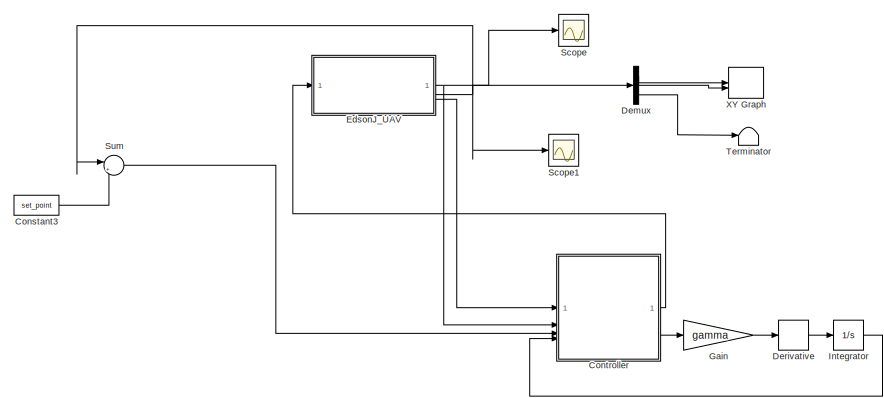
[diagram: root canvas - part 1/3, top right region]
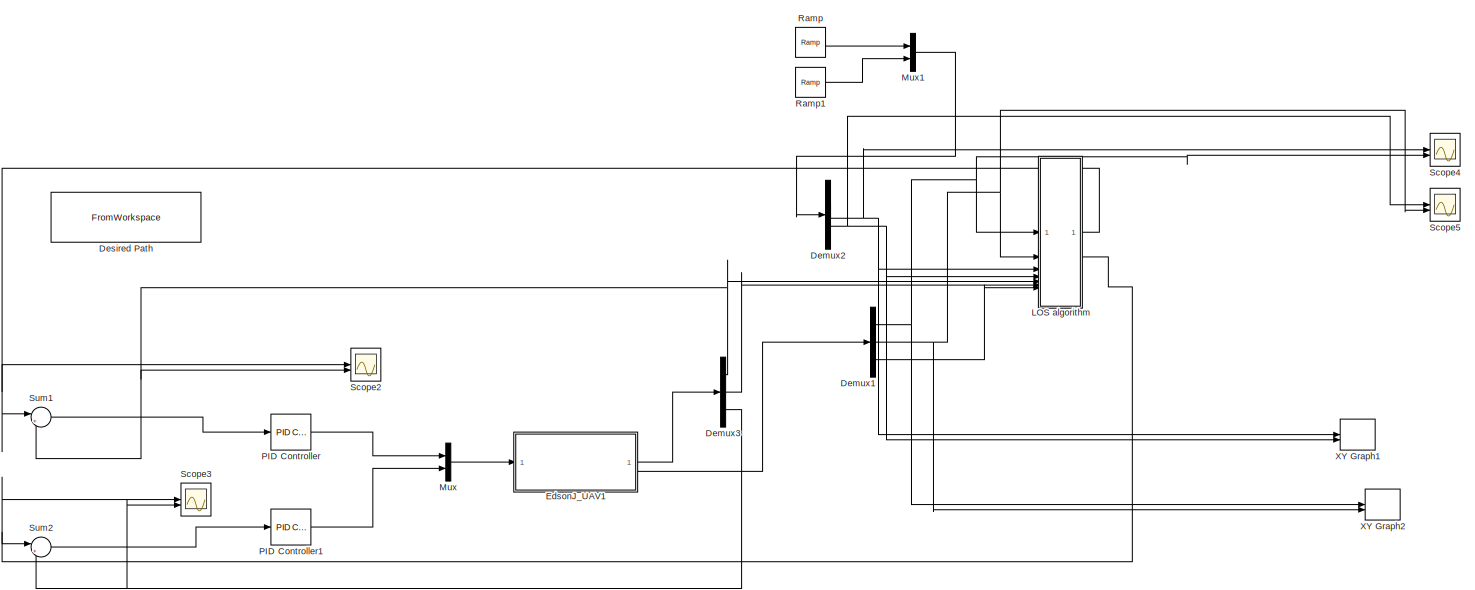
[diagram: root canvas - part 2/3, bottom center region]
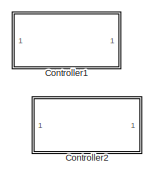
[diagram: root canvas - part 3/3, bottom left region]
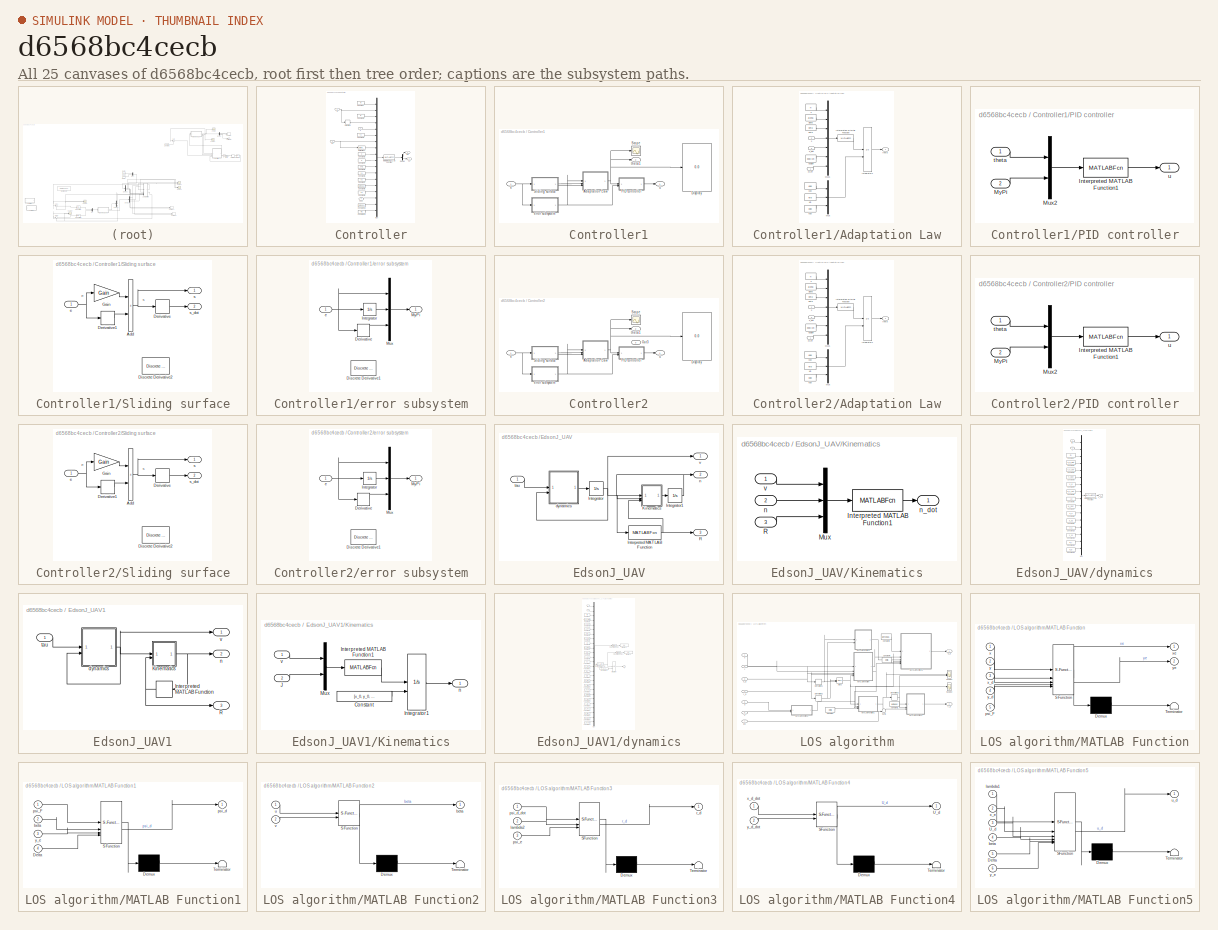
[diagram: thumbnail index - all 25 canvases of the model, root first then tree order]
MODEL slx_d6568bc4cecb
KIND model
CONFIG AbsTol = auto
CONFIG EnableMultiTasking = off
CONFIG FixedStep = 1e-4
CONFIG MaxStep = auto
CONFIG MinStep = auto
CONFIG RelTol = 1e-3
CONFIG SampleTimeConstraint = Unconstrained
CONFIG SolverName = VariableStepAuto
CONFIG StartTime = 0.0
CONFIG StopTime = 80
BLOCK [Constant] Constant3
  Commented = on
  Value = set_point
BLOCK [SubSystem] Controller
  Commented = on
BLOCK [Constant] Controller/Constant
  Value = M
BLOCK [Constant] Controller/Constant1
  Value = c1
BLOCK [Constant] Controller/Constant10
  Value = lambda1
BLOCK [Constant] Controller/Constant11
  Value = mu
BLOCK [Constant] Controller/Constant2
  Value = D
BLOCK [Constant] Controller/Constant3
  Value = p
BLOCK [Constant] Controller/Constant4
  Value = q
BLOCK [Constant] Controller/Constant5
  Value = phi1
BLOCK [Constant] Controller/Constant6
  Value = h1
BLOCK [Constant] Controller/Constant7
  Value = h2
BLOCK [Constant] Controller/Constant8
  Value = lambda2
BLOCK [Constant] Controller/Constant9
  Value = h3
BLOCK [Demux] Controller/Demux
  Outputs = 2
BLOCK [Derivative] Controller/Derivative
BLOCK [Derivative] Controller/Derivative1
BLOCK [Inport] Controller/Fest
  Port = 4
BLOCK [MATLABFcn] Controller/Interpreted MATLAB Function
  MATLABFcn = control_ABFTISMC
BLOCK [Mux] Controller/Mux
  DisplayOption = bar
  Inputs = 18
BLOCK [Inport] Controller/R
BLOCK [Outport] Controller/s2
  Port = 2
BLOCK [Outport] Controller/tau
BLOCK [Inport] Controller/v
  Port = 2
BLOCK [Inport] Controller/z1
  Port = 3
BLOCK [SubSystem] Controller1
  Commented = on
BLOCK [SubSystem] Controller1/Adaptation Law
BLOCK [Integrator] Controller1/Adaptation Law/Integrator1
  InitialCondition = [1.460477259865257e-04,6.548069875818259e-05,0]
  InitialConditionSource = external
BLOCK [MATLABFcn] Controller1/Adaptation Law/Interpreted MATLAB Function
  MATLABFcn = adaptationLaw
BLOCK [Mux] Controller1/Adaptation Law/Mux
  DisplayOption = bar
  Inputs = 3
BLOCK [Mux] Controller1/Adaptation Law/Mux1
  DisplayOption = bar
  Inputs = 7
BLOCK [Constant] Controller1/Adaptation Law/alpha
  Value = alpha
BLOCK [Constant] Controller1/Adaptation Law/beta
  Value = beta
BLOCK [Constant] Controller1/Adaptation Law/epsilon
  Value = epsilon
BLOCK [Constant] Controller1/Adaptation Law/kd0
  Value = kd0
BLOCK [Constant] Controller1/Adaptation Law/ki0
  Value = ki0
BLOCK [Constant] Controller1/Adaptation Law/kp0
  Value = kp0
BLOCK [Inport] Controller1/Adaptation Law/myPi
BLOCK [Constant] Controller1/Adaptation Law/n
  Value = n
BLOCK [Inport] Controller1/Adaptation Law/s
  Port = 2
BLOCK [Inport] Controller1/Adaptation Law/s_dot
  Port = 3
BLOCK [Outport] Controller1/Adaptation Law/theta
BLOCK [Display] Controller1/Display
  Decimation = 1
BLOCK [SubSystem] Controller1/PID controller
BLOCK [MATLABFcn] Controller1/PID controller/Interpreted MATLAB Function1
  MATLABFcn = controlLaw
  OutputDimensions = 1
BLOCK [Mux] Controller1/PID controller/Mux2
  DisplayOption = bar
  Inputs = 2
BLOCK [Inport] Controller1/PID controller/MyPi
  Port = 2
BLOCK [Inport] Controller1/PID controller/theta
BLOCK [Outport] Controller1/PID controller/u
BLOCK [Scope] Controller1/Scope
  Floating = off
  NumInputPorts = 1
  ScopeSpecificationString = Simulink.scopes.TimeScopeBlockCfg('CurrentConfiguration', extmgr.ConfigurationSet(extmgr.Configuration('Core','General UI',true,'DisplayFullSourceName',false,'ShowMainToolbar',true),extmgr.Configuration('Sources','WiredSimulink',true,'DataLogging',false,'DataLoggingVariableName','ScopeData1','DataLoggingLimitDataPoints',false,'DataLoggingMaxPoints','5000','DataLoggingDecimateData',false,'DataLoggi...<+1998ch>
BLOCK [SubSystem] Controller1/Sliding surface
BLOCK [Sum] Controller1/Sliding surface/Add
  IconShape = rectangular
BLOCK [Derivative] Controller1/Sliding surface/Derivative
BLOCK [Derivative] Controller1/Sliding surface/Derivative1
BLOCK [Reference] Controller1/Sliding surface/Discrete Derivative2  REF=simulink/Discrete/Discrete Derivative
  Commented = on
  SourceBlock = simulink/Discrete/Discrete Derivative
  SourceType = Discrete Derivative
BLOCK [Gain] Controller1/Sliding surface/Gain
  Gain = Gain
BLOCK [Inport] Controller1/Sliding surface/e
BLOCK [Outport] Controller1/Sliding surface/s
BLOCK [Outport] Controller1/Sliding surface/s_dot
  Port = 2
BLOCK [Inport] Controller1/e
BLOCK [SubSystem] Controller1/error subsystem
BLOCK [Derivative] Controller1/error subsystem/Derivative
BLOCK [Reference] Controller1/error subsystem/Discrete Derivative1  REF=simulink/Discrete/Discrete Derivative
  Commented = on
  SourceBlock = simulink/Discrete/Discrete Derivative
  SourceType = Discrete Derivative
BLOCK [Integrator] Controller1/error subsystem/Integrator
BLOCK [Mux] Controller1/error subsystem/Mux
  DisplayOption = bar
  Inputs = 3
BLOCK [Outport] Controller1/error subsystem/MyPi
BLOCK [Inport] Controller1/error subsystem/e
BLOCK [Outport] Controller1/theta1
  Port = 2
BLOCK [Outport] Controller1/u
BLOCK [SubSystem] Controller2
  Commented = on
  PortSchema = {"entries":[{"content":{"sides":[{"content":{"connectorIds":["In1"]},"type":"ConnectorPlacement.EquallySpacedRectSide","uuid":"f76ee324-2c0a-46ef-be7a-d74aa6ee62a4"},{"content":{"connectorIds":["Out1","Out2"],"side":"RIGHT"},"type":"ConnectorPlacement.EquallySpacedRectSide","uuid":"2ae83653-956d-4e34-a111-2446cf218777"},{"content":{"side":"TOP"},"type":"ConnectorPlacement.EquallySpacedRectSide","u...<+379ch>
BLOCK [SubSystem] Controller2/Adaptation Law
BLOCK [Integrator] Controller2/Adaptation Law/Integrator1
  InitialCondition = [1.460477259865257e-04,6.548069875818259e-05,0]
  InitialConditionSource = external
BLOCK [MATLABFcn] Controller2/Adaptation Law/Interpreted MATLAB Function
  MATLABFcn = adaptationLaw
BLOCK [Mux] Controller2/Adaptation Law/Mux
  DisplayOption = bar
  Inputs = 3
BLOCK [Mux] Controller2/Adaptation Law/Mux1
  DisplayOption = bar
  Inputs = 7
BLOCK [Constant] Controller2/Adaptation Law/alpha
  Value = alpha
BLOCK [Constant] Controller2/Adaptation Law/beta
  Value = beta
BLOCK [Constant] Controller2/Adaptation Law/epsilon
  Value = epsilon
BLOCK [Constant] Controller2/Adaptation Law/kd0
  Value = kd0
BLOCK [Constant] Controller2/Adaptation Law/ki0
  Value = ki0
BLOCK [Constant] Controller2/Adaptation Law/kp0
  Value = kp0
BLOCK [Inport] Controller2/Adaptation Law/myPi
BLOCK [Constant] Controller2/Adaptation Law/n
  Value = n
BLOCK [Inport] Controller2/Adaptation Law/s
  Port = 2
BLOCK [Inport] Controller2/Adaptation Law/s_dot
  Port = 3
BLOCK [Outport] Controller2/Adaptation Law/theta
BLOCK [Display] Controller2/Display
  Decimation = 1
BLOCK [Outport] Controller2/Out3
  Port = 3
BLOCK [SubSystem] Controller2/PID controller
BLOCK [MATLABFcn] Controller2/PID controller/Interpreted MATLAB Function1
  MATLABFcn = controlLaw
  OutputDimensions = 1
BLOCK [Mux] Controller2/PID controller/Mux2
  DisplayOption = bar
  Inputs = 2
BLOCK [Inport] Controller2/PID controller/MyPi
  Port = 2
BLOCK [Inport] Controller2/PID controller/theta
BLOCK [Outport] Controller2/PID controller/u
BLOCK [Scope] Controller2/Scope
  Floating = off
  NumInputPorts = 1
  ScopeSpecificationString = Simulink.scopes.TimeScopeBlockCfg('CurrentConfiguration', extmgr.ConfigurationSet(extmgr.Configuration('Core','General UI',true,'DisplayFullSourceName',false,'ShowMainToolbar',true),extmgr.Configuration('Sources','WiredSimulink',true,'DataLogging',false,'DataLoggingVariableName','ScopeData1','DataLoggingLimitDataPoints',false,'DataLoggingMaxPoints','5000','DataLoggingDecimateData',false,'DataLoggi...<+1998ch>
BLOCK [SubSystem] Controller2/Sliding surface
BLOCK [Sum] Controller2/Sliding surface/Add
  IconShape = rectangular
BLOCK [Derivative] Controller2/Sliding surface/Derivative
BLOCK [Derivative] Controller2/Sliding surface/Derivative1
BLOCK [Reference] Controller2/Sliding surface/Discrete Derivative2  REF=simulink/Discrete/Discrete Derivative
  Commented = on
  SourceBlock = simulink/Discrete/Discrete Derivative
  SourceType = Discrete Derivative
BLOCK [Gain] Controller2/Sliding surface/Gain
  Gain = Gain
BLOCK [Inport] Controller2/Sliding surface/e
BLOCK [Outport] Controller2/Sliding surface/s
BLOCK [Outport] Controller2/Sliding surface/s_dot
  Port = 2
BLOCK [Inport] Controller2/e
BLOCK [SubSystem] Controller2/error subsystem
BLOCK [Derivative] Controller2/error subsystem/Derivative
BLOCK [Reference] Controller2/error subsystem/Discrete Derivative1  REF=simulink/Discrete/Discrete Derivative
  Commented = on
  SourceBlock = simulink/Discrete/Discrete Derivative
  SourceType = Discrete Derivative
BLOCK [Integrator] Controller2/error subsystem/Integrator
BLOCK [Mux] Controller2/error subsystem/Mux
  DisplayOption = bar
  Inputs = 3
BLOCK [Outport] Controller2/error subsystem/MyPi
BLOCK [Inport] Controller2/error subsystem/e
BLOCK [Outport] Controller2/theta1
  Port = 2
BLOCK [Outport] Controller2/u
BLOCK [Demux] Demux
  Commented = on
  Outputs = 3
BLOCK [Demux] Demux1
  Outputs = 3
BLOCK [Demux] Demux2
  Outputs = 2
BLOCK [Demux] Demux3
  Outputs = 3
BLOCK [Derivative] Derivative
  Commented = on
BLOCK [FromWorkspace] Desired Path
  Commented = on
  VariableName = path
BLOCK [SubSystem] EdsonJ_UAV
  Commented = on
BLOCK [Integrator] EdsonJ_UAV/Integrator
  InitialCondition = [0,0,0]
BLOCK [Integrator] EdsonJ_UAV/Integrator1
  InitialCondition = [0,0,0]
BLOCK [MATLABFcn] EdsonJ_UAV/Interpreted MATLAB Function
  MATLABFcn = J_matrix
BLOCK [SubSystem] EdsonJ_UAV/Kinematics
BLOCK [MATLABFcn] EdsonJ_UAV/Kinematics/Interpreted MATLAB Function1
  MATLABFcn = kinematic
BLOCK [Mux] EdsonJ_UAV/Kinematics/Mux
  DisplayOption = bar
  Inputs = 3
BLOCK [Inport] EdsonJ_UAV/Kinematics/R
  Port = 3
BLOCK [Inport] EdsonJ_UAV/Kinematics/n
  Port = 2
BLOCK [Outport] EdsonJ_UAV/Kinematics/n_dot
BLOCK [Inport] EdsonJ_UAV/Kinematics/v
BLOCK [Outport] EdsonJ_UAV/R
  Port = 3
BLOCK [SubSystem] EdsonJ_UAV/dynamics
BLOCK [Constant] EdsonJ_UAV/dynamics/Constant
  Value = m
BLOCK [Constant] EdsonJ_UAV/dynamics/Constant1
  Value = X_u_dot
BLOCK [Constant] EdsonJ_UAV/dynamics/Constant10
  Value = Y_v
BLOCK [Constant] EdsonJ_UAV/dynamics/Constant11
  Value = Y_vv
BLOCK [Constant] EdsonJ_UAV/dynamics/Constant12
  Value = N_r
BLOCK [Constant] EdsonJ_UAV/dynamics/Constant13
  Value = N_rr
BLOCK [Constant] EdsonJ_UAV/dynamics/Constant2
  Value = Y_v_dot
BLOCK [Constant] EdsonJ_UAV/dynamics/Constant3
  Value = Y_r_dot
BLOCK [Constant] EdsonJ_UAV/dynamics/Constant4
  Value = x_g
BLOCK [Constant] EdsonJ_UAV/dynamics/Constant5
  Value = N_v_dot
BLOCK [Constant] EdsonJ_UAV/dynamics/Constant6
  Value = I_z
BLOCK [Constant] EdsonJ_UAV/dynamics/Constant7
  Value = N_r_dot
BLOCK [Constant] EdsonJ_UAV/dynamics/Constant8
  Value = X_u
BLOCK [Constant] EdsonJ_UAV/dynamics/Constant9
  Value = X_uu
BLOCK [MATLABFcn] EdsonJ_UAV/dynamics/Interpreted MATLAB Function
  MATLABFcn = dinamic
BLOCK [Mux] EdsonJ_UAV/dynamics/Mux
  DisplayOption = bar
  Inputs = 16
BLOCK [Inport] EdsonJ_UAV/dynamics/tao
BLOCK [Inport] EdsonJ_UAV/dynamics/v
  Port = 2
BLOCK [Outport] EdsonJ_UAV/dynamics/v_dot
BLOCK [Outport] EdsonJ_UAV/n
  Port = 2
BLOCK [Inport] EdsonJ_UAV/tau
BLOCK [Outport] EdsonJ_UAV/v
BLOCK [SubSystem] EdsonJ_UAV1
BLOCK [MATLABFcn] EdsonJ_UAV1/Interpreted MATLAB Function
  MATLABFcn = J_matrix
  NameLocation = top
BLOCK [SubSystem] EdsonJ_UAV1/Kinematics
BLOCK [Constant] EdsonJ_UAV1/Kinematics/Constant
  Value = [x_0, y_0, yaw_0]
BLOCK [Integrator] EdsonJ_UAV1/Kinematics/Integrator1
  InitialCondition = [0,0,0]
  InitialConditionSource = external
BLOCK [MATLABFcn] EdsonJ_UAV1/Kinematics/Interpreted MATLAB Function1
  MATLABFcn = kinematic
BLOCK [Inport] EdsonJ_UAV1/Kinematics/J
  Port = 2
BLOCK [Mux] EdsonJ_UAV1/Kinematics/Mux
  DisplayOption = bar
  Inputs = 2
BLOCK [Outport] EdsonJ_UAV1/Kinematics/n
BLOCK [Inport] EdsonJ_UAV1/Kinematics/v
BLOCK [Outport] EdsonJ_UAV1/R
  Port = 3
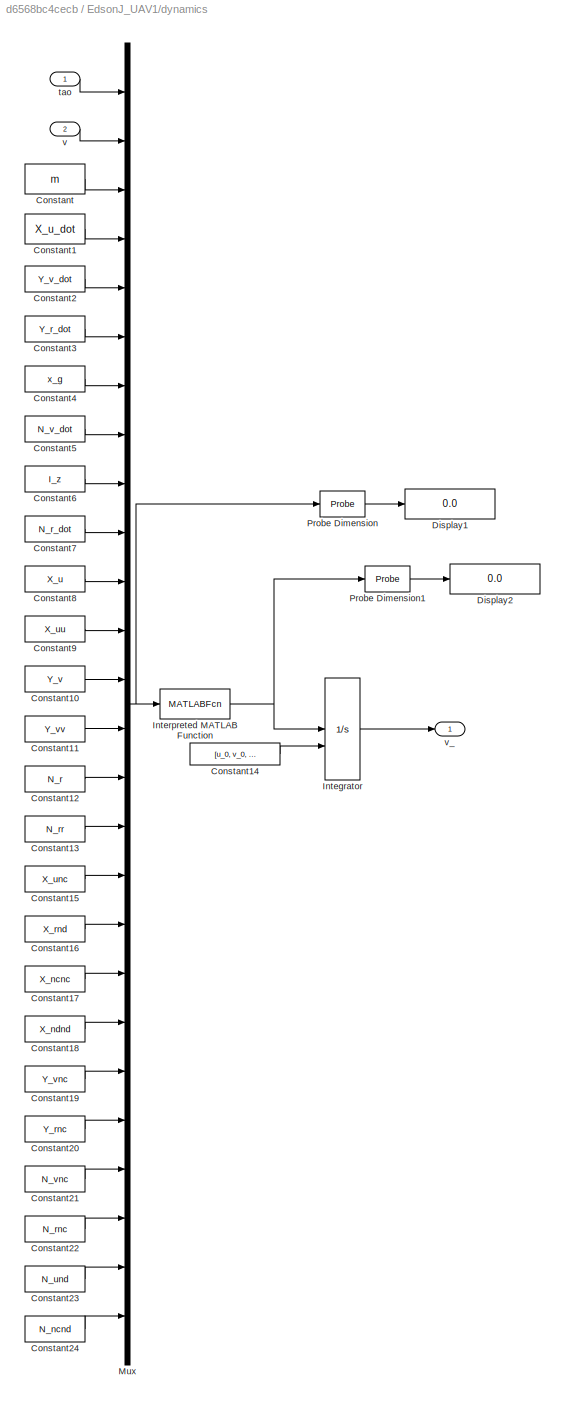
BLOCK [SubSystem] EdsonJ_UAV1/dynamics
BLOCK [Constant] EdsonJ_UAV1/dynamics/Constant
  Value = m
BLOCK [Constant] EdsonJ_UAV1/dynamics/Constant1
  Value = X_u_dot
BLOCK [Constant] EdsonJ_UAV1/dynamics/Constant10
  Value = Y_v
BLOCK [Constant] EdsonJ_UAV1/dynamics/Constant11
  Value = Y_vv
BLOCK [Constant] EdsonJ_UAV1/dynamics/Constant12
  Value = N_r
BLOCK [Constant] EdsonJ_UAV1/dynamics/Constant13
  Value = N_rr
BLOCK [Constant] EdsonJ_UAV1/dynamics/Constant14
  Value = [u_0, v_0, r_0]
BLOCK [Constant] EdsonJ_UAV1/dynamics/Constant15
  Value = X_unc
BLOCK [Constant] EdsonJ_UAV1/dynamics/Constant16
  Value = X_rnd
BLOCK [Constant] EdsonJ_UAV1/dynamics/Constant17
  Value = X_ncnc
BLOCK [Constant] EdsonJ_UAV1/dynamics/Constant18
  Value = X_ndnd
BLOCK [Constant] EdsonJ_UAV1/dynamics/Constant19
  Value = Y_vnc
BLOCK [Constant] EdsonJ_UAV1/dynamics/Constant2
  Value = Y_v_dot
BLOCK [Constant] EdsonJ_UAV1/dynamics/Constant20
  Value = Y_rnc
BLOCK [Constant] EdsonJ_UAV1/dynamics/Constant21
  Value = N_vnc
BLOCK [Constant] EdsonJ_UAV1/dynamics/Constant22
  Value = N_rnc
BLOCK [Constant] EdsonJ_UAV1/dynamics/Constant23
  Value = N_und
BLOCK [Constant] EdsonJ_UAV1/dynamics/Constant24
  Value = N_ncnd
BLOCK [Constant] EdsonJ_UAV1/dynamics/Constant3
  Value = Y_r_dot
BLOCK [Constant] EdsonJ_UAV1/dynamics/Constant4
  Value = x_g
BLOCK [Constant] EdsonJ_UAV1/dynamics/Constant5
  Value = N_v_dot
BLOCK [Constant] EdsonJ_UAV1/dynamics/Constant6
  Value = I_z
BLOCK [Constant] EdsonJ_UAV1/dynamics/Constant7
  Value = N_r_dot
BLOCK [Constant] EdsonJ_UAV1/dynamics/Constant8
  Value = X_u
BLOCK [Constant] EdsonJ_UAV1/dynamics/Constant9
  Value = X_uu
BLOCK [Display] EdsonJ_UAV1/dynamics/Display1
  Decimation = 1
BLOCK [Display] EdsonJ_UAV1/dynamics/Display2
  Decimation = 1
BLOCK [Integrator] EdsonJ_UAV1/dynamics/Integrator
  InitialCondition = [0,0,0]
  InitialConditionSource = external
BLOCK [MATLABFcn] EdsonJ_UAV1/dynamics/Interpreted MATLAB Function
  MATLABFcn = dinamic
BLOCK [Mux] EdsonJ_UAV1/dynamics/Mux
  DisplayOption = bar
  Inputs = 26
BLOCK [Probe] EdsonJ_UAV1/dynamics/Probe Dimension
  ProbeComplexSignal = off
  ProbeSampleTime = off
  ProbeSignalDimensions = on
  ProbeWidth = off
BLOCK [Probe] EdsonJ_UAV1/dynamics/Probe Dimension1
  ProbeComplexSignal = off
  ProbeSampleTime = off
  ProbeSignalDimensions = on
  ProbeWidth = off
BLOCK [Inport] EdsonJ_UAV1/dynamics/tao
BLOCK [Inport] EdsonJ_UAV1/dynamics/v
  Port = 2
BLOCK [Outport] EdsonJ_UAV1/dynamics/v_
BLOCK [Outport] EdsonJ_UAV1/n
  Port = 2
BLOCK [Inport] EdsonJ_UAV1/tau
BLOCK [Outport] EdsonJ_UAV1/v
BLOCK [Gain] Gain
  Commented = on
  Gain = gamma
BLOCK [Integrator] Integrator
  Commented = on
  InitialCondition = [0,0,0]'
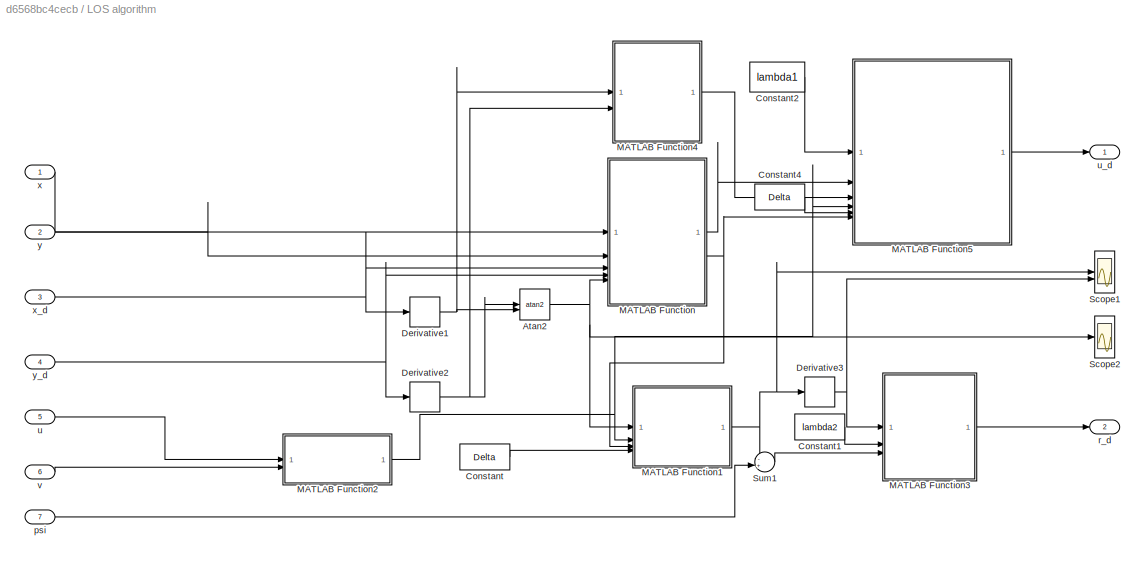
BLOCK [SubSystem] LOS algorithm
BLOCK [Trigonometry] LOS algorithm/Atan2
  Operator = atan2
BLOCK [Constant] LOS algorithm/Constant
  Value = Delta
BLOCK [Constant] LOS algorithm/Constant1
  Value = lambda2
BLOCK [Constant] LOS algorithm/Constant2
  Value = lambda1
BLOCK [Constant] LOS algorithm/Constant4
  Value = Delta
BLOCK [Derivative] LOS algorithm/Derivative1
BLOCK [Derivative] LOS algorithm/Derivative2
BLOCK [Derivative] LOS algorithm/Derivative3
BLOCK [SubSystem] LOS algorithm/MATLAB Function
  ErrorFcn = Stateflow.Translate.translate
  PermitHierarchicalResolution = ExplicitOnly
  SFBlockType = MATLAB Function
  TreatAsAtomicUnit = on
BLOCK [Demux] LOS algorithm/MATLAB Function/ Demux 
  Outputs = 1
BLOCK [S-Function] LOS algorithm/MATLAB Function/ SFunction 
  EnableBusSupport = off
  FunctionName = sf_sfun
  PortCounts = [5 3]
  SFcnIsStateOwnerBlock = off
  SFunctionDeploymentMode = off
  Tag = Stateflow S-Function 2
BLOCK [Terminator] LOS algorithm/MATLAB Function/ Terminator 
BLOCK [Inport] LOS algorithm/MATLAB Function/psi_F
  Port = 5
BLOCK [Inport] LOS algorithm/MATLAB Function/x
BLOCK [Inport] LOS algorithm/MATLAB Function/x_d
  Port = 3
BLOCK [Outport] LOS algorithm/MATLAB Function/xe
BLOCK [Inport] LOS algorithm/MATLAB Function/y
  Port = 2
BLOCK [Inport] LOS algorithm/MATLAB Function/y_d
  Port = 4
BLOCK [Outport] LOS algorithm/MATLAB Function/ye
  Port = 2
BLOCK [SubSystem] LOS algorithm/MATLAB Function1
  ErrorFcn = Stateflow.Translate.translate
  PermitHierarchicalResolution = ExplicitOnly
  SFBlockType = MATLAB Function
  TreatAsAtomicUnit = on
BLOCK [Demux] LOS algorithm/MATLAB Function1/ Demux 
  Outputs = 1
BLOCK [S-Function] LOS algorithm/MATLAB Function1/ SFunction 
  EnableBusSupport = off
  FunctionName = sf_sfun
  PortCounts = [4 2]
  SFcnIsStateOwnerBlock = off
  SFunctionDeploymentMode = off
  Tag = Stateflow S-Function 1
BLOCK [Terminator] LOS algorithm/MATLAB Function1/ Terminator 
BLOCK [Inport] LOS algorithm/MATLAB Function1/Delta
  Port = 4
BLOCK [Inport] LOS algorithm/MATLAB Function1/beta
  Port = 2
BLOCK [Inport] LOS algorithm/MATLAB Function1/psi_F
BLOCK [Outport] LOS algorithm/MATLAB Function1/psi_d
BLOCK [Inport] LOS algorithm/MATLAB Function1/y_e
  Port = 3
BLOCK [SubSystem] LOS algorithm/MATLAB Function2
  ErrorFcn = Stateflow.Translate.translate
  PermitHierarchicalResolution = ExplicitOnly
  SFBlockType = MATLAB Function
  TreatAsAtomicUnit = on
BLOCK [Demux] LOS algorithm/MATLAB Function2/ Demux 
  Outputs = 1
BLOCK [S-Function] LOS algorithm/MATLAB Function2/ SFunction 
  EnableBusSupport = off
  FunctionName = sf_sfun
  PortCounts = [2 2]
  SFcnIsStateOwnerBlock = off
  SFunctionDeploymentMode = off
  Tag = Stateflow S-Function 3
BLOCK [Terminator] LOS algorithm/MATLAB Function2/ Terminator 
BLOCK [Outport] LOS algorithm/MATLAB Function2/beta
BLOCK [Inport] LOS algorithm/MATLAB Function2/u
BLOCK [Inport] LOS algorithm/MATLAB Function2/v
  Port = 2
BLOCK [SubSystem] LOS algorithm/MATLAB Function3
  ErrorFcn = Stateflow.Translate.translate
  PermitHierarchicalResolution = ExplicitOnly
  SFBlockType = MATLAB Function
  TreatAsAtomicUnit = on
BLOCK [Demux] LOS algorithm/MATLAB Function3/ Demux 
  Outputs = 1
BLOCK [S-Function] LOS algorithm/MATLAB Function3/ SFunction 
  EnableBusSupport = off
  FunctionName = sf_sfun
  PortCounts = [3 2]
  SFcnIsStateOwnerBlock = off
  SFunctionDeploymentMode = off
  Tag = Stateflow S-Function 4
BLOCK [Terminator] LOS algorithm/MATLAB Function3/ Terminator 
BLOCK [Inport] LOS algorithm/MATLAB Function3/lambda2
  Port = 2
BLOCK [Inport] LOS algorithm/MATLAB Function3/psi_d_dot
BLOCK [Inport] LOS algorithm/MATLAB Function3/psi_e
  Port = 3
BLOCK [Outport] LOS algorithm/MATLAB Function3/r_d
BLOCK [SubSystem] LOS algorithm/MATLAB Function4
  ErrorFcn = Stateflow.Translate.translate
  PermitHierarchicalResolution = ExplicitOnly
  SFBlockType = MATLAB Function
  TreatAsAtomicUnit = on
BLOCK [Demux] LOS algorithm/MATLAB Function4/ Demux 
  Outputs = 1
BLOCK [S-Function] LOS algorithm/MATLAB Function4/ SFunction 
  EnableBusSupport = off
  FunctionName = sf_sfun
  PortCounts = [2 2]
  SFcnIsStateOwnerBlock = off
  SFunctionDeploymentMode = off
  Tag = Stateflow S-Function 5
BLOCK [Terminator] LOS algorithm/MATLAB Function4/ Terminator 
BLOCK [Outport] LOS algorithm/MATLAB Function4/U_d
BLOCK [Inport] LOS algorithm/MATLAB Function4/x_d_dot
BLOCK [Inport] LOS algorithm/MATLAB Function4/y_d_dot
  Port = 2
BLOCK [SubSystem] LOS algorithm/MATLAB Function5
  ErrorFcn = Stateflow.Translate.translate
  PermitHierarchicalResolution = ExplicitOnly
  SFBlockType = MATLAB Function
  TreatAsAtomicUnit = on
BLOCK [Demux] LOS algorithm/MATLAB Function5/ Demux 
  Outputs = 1
BLOCK [S-Function] LOS algorithm/MATLAB Function5/ SFunction 
  EnableBusSupport = off
  FunctionName = sf_sfun
  PortCounts = [6 2]
  SFcnIsStateOwnerBlock = off
  SFunctionDeploymentMode = off
  Tag = Stateflow S-Function 6
BLOCK [Terminator] LOS algorithm/MATLAB Function5/ Terminator 
BLOCK [Inport] LOS algorithm/MATLAB Function5/Delta
  Port = 5
BLOCK [Inport] LOS algorithm/MATLAB Function5/U_d
  Port = 3
BLOCK [Inport] LOS algorithm/MATLAB Function5/beta
  Port = 4
BLOCK [Inport] LOS algorithm/MATLAB Function5/lambda1
BLOCK [Outport] LOS algorithm/MATLAB Function5/u_d
BLOCK [Inport] LOS algorithm/MATLAB Function5/x_e
  Port = 2
BLOCK [Inport] LOS algorithm/MATLAB Function5/y_e
  Port = 6
BLOCK [Scope] LOS algorithm/Scope1
  Floating = off
  NumInputPorts = 2
  ScopeSpecificationString = Simulink.scopes.TimeScopeBlockCfg('CurrentConfiguration', extmgr.ConfigurationSet(extmgr.Configuration('Core','General UI',true,'DisplayFullSourceName',false,'ShowMainToolbar',true,'FigureColor',[0.129411764705882 0.129411764705882 0.129411764705882]),extmgr.Configuration('Sources','WiredSimulink',true,'DataLogging',false,'DataLoggingVariableName','ScopeData7','DataLoggingLimitDataPoints',false,'D...<+3228ch>
BLOCK [Scope] LOS algorithm/Scope2
  Floating = off
  NumInputPorts = 2
  ScopeSpecificationString = Simulink.scopes.TimeScopeBlockCfg('CurrentConfiguration', extmgr.ConfigurationSet(extmgr.Configuration('Core','General UI',true,'DisplayFullSourceName',false,'ShowMainToolbar',true,'FigureColor',[0.129411764705882 0.129411764705882 0.129411764705882]),extmgr.Configuration('Sources','WiredSimulink',true,'DataLogging',false,'DataLoggingVariableName','ScopeData6','DataLoggingLimitDataPoints',false,'D...<+3188ch>
BLOCK [Sum] LOS algorithm/Sum1
  Inputs = -+|
BLOCK [Inport] LOS algorithm/psi
  Port = 7
BLOCK [Outport] LOS algorithm/r_d
  Port = 2
BLOCK [Inport] LOS algorithm/u
  Port = 5
BLOCK [Outport] LOS algorithm/u_d
BLOCK [Inport] LOS algorithm/v
  Port = 6
BLOCK [Inport] LOS algorithm/x
BLOCK [Inport] LOS algorithm/x_d
  Port = 3
BLOCK [Inport] LOS algorithm/y
  Port = 2
BLOCK [Inport] LOS algorithm/y_d
  Port = 4
BLOCK [Mux] Mux
  DisplayOption = bar
  Inputs = 2
BLOCK [Mux] Mux1
  DisplayOption = bar
  Inputs = 2
BLOCK [Reference] PID Controller  REF=slpidlib/PID Controller
  LibrarySourceBlock = simulink/Continuous/PID Controller
  SourceBlock = slpidlib/PID Controller
  SourceType = PID 1dof
BLOCK [Reference] PID Controller1  REF=slpidlib/PID Controller
  LibrarySourceBlock = simulink/Continuous/PID Controller
  SourceBlock = slpidlib/PID Controller
  SourceType = PID 1dof
BLOCK [Reference] Ramp  REF=simulink/Sources/Ramp
  SourceBlock = simulink/Sources/Ramp
  SourceType = Ramp
BLOCK [Reference] Ramp1  REF=simulink/Sources/Ramp
  SourceBlock = simulink/Sources/Ramp
  SourceType = Ramp
BLOCK [Scope] Scope
  Commented = on
  Floating = off
  NumInputPorts = 1
  ScopeSpecificationString = Simulink.scopes.TimeScopeBlockCfg('CurrentConfiguration', extmgr.ConfigurationSet(extmgr.Configuration('Core','General UI',true,'DisplayFullSourceName',false,'ShowMainToolbar',true,'FigureColor',[0.129411764705882 0.129411764705882 0.129411764705882]),extmgr.Configuration('Sources','WiredSimulink',true,'DataLogging',false,'DataLoggingVariableName','ScopeData','DataLoggingLimitDataPoints',false,'Da...<+2566ch>
BLOCK [Scope] Scope1
  Commented = on
  Floating = off
  NumInputPorts = 1
  ScopeSpecificationString = Simulink.scopes.TimeScopeBlockCfg('CurrentConfiguration', extmgr.ConfigurationSet(extmgr.Configuration('Core','General UI',true,'DisplayFullSourceName',false,'ShowMainToolbar',true,'FigureColor',[0.129411764705882 0.129411764705882 0.129411764705882]),extmgr.Configuration('Sources','WiredSimulink',true,'DataLogging',false,'DataLoggingVariableName','ScopeData1','DataLoggingLimitDataPoints',false,'D...<+2567ch>
BLOCK [Scope] Scope2
  Floating = off
  NumInputPorts = 2
  ScopeSpecificationString = Simulink.scopes.TimeScopeBlockCfg('CurrentConfiguration', extmgr.ConfigurationSet(extmgr.Configuration('Core','General UI',true,'DisplayFullSourceName',false,'ShowMainToolbar',true,'FigureColor',[0.129411764705882 0.129411764705882 0.129411764705882]),extmgr.Configuration('Sources','WiredSimulink',true,'DataLogging',false,'DataLoggingVariableName','ScopeData2','DataLoggingLimitDataPoints',false,'D...<+2385ch>
BLOCK [Scope] Scope3
  Floating = off
  NumInputPorts = 2
  ScopeSpecificationString = Simulink.scopes.TimeScopeBlockCfg('CurrentConfiguration', extmgr.ConfigurationSet(extmgr.Configuration('Core','General UI',true,'DisplayFullSourceName',false,'ShowMainToolbar',true,'FigureColor',[0.129411764705882 0.129411764705882 0.129411764705882]),extmgr.Configuration('Sources','WiredSimulink',true,'DataLogging',false,'DataLoggingVariableName','ScopeData3','DataLoggingLimitDataPoints',false,'D...<+2374ch>
BLOCK [Scope] Scope4
  Floating = off
  NumInputPorts = 2
  ScopeSpecificationString = Simulink.scopes.TimeScopeBlockCfg('CurrentConfiguration', extmgr.ConfigurationSet(extmgr.Configuration('Core','General UI',true,'DisplayFullSourceName',false,'ShowMainToolbar',true,'FigureColor',[0.129411764705882 0.129411764705882 0.129411764705882]),extmgr.Configuration('Sources','WiredSimulink',true,'DataLogging',false,'DataLoggingVariableName','ScopeData4','DataLoggingLimitDataPoints',false,'D...<+2404ch>
BLOCK [Scope] Scope5
  Floating = off
  NumInputPorts = 2
  ScopeSpecificationString = Simulink.scopes.TimeScopeBlockCfg('CurrentConfiguration', extmgr.ConfigurationSet(extmgr.Configuration('Core','General UI',true,'DisplayFullSourceName',false,'ShowMainToolbar',true,'FigureColor',[0.129411764705882 0.129411764705882 0.129411764705882]),extmgr.Configuration('Sources','WiredSimulink',true,'DataLogging',false,'DataLoggingVariableName','ScopeData5','DataLoggingLimitDataPoints',false,'D...<+2408ch>
BLOCK [Sum] Sum
  Commented = on
  Inputs = |+-
BLOCK [Sum] Sum1
  Inputs = |+-
BLOCK [Sum] Sum2
  Inputs = |+-
BLOCK [Terminator] Terminator
  Commented = on
BLOCK [Record] XY Graph
  Commented = on
  CompatibilityTag = XY
  FileSettingsInternal = {"entries":[{"content":{"excelSettings":{"content":{},"type":"Streamout.ExcelSettings"},"parquetSettings":{"content":{},"type":"Streamout.ParquetSettings"}},"type":"Streamout.FileSettingStorage","uuid":""}],"packageUris":["http:\/\/schema.mathworks.com\/mf0\/streamout_blocks\/R2020a"],"version":"1.0"}  <repeated x3 — deduplicated; at blocks: XY Graph, XY Graph1, XY Graph2>
  Layout = [1 1]
  SignalsInternal = {"entries":[{"content":{"signals":[{"content":{"blockPath":[],"dimensions":[1],"domain":"","lineColor":"#a2142f","plots":[ 1 ],"port":1,"signalID":1,"signalName":"Demux:1"},"type":"RecordBlkView.Signal","uuid":""},{"content":{"blockPath":[],"dimensions":[1],"domain":"","lineColor":"#139fff","plots":[ 1 ],"port":2,"signalID":2,"signalName":"Demux:2"},"type":"RecordBlkView.Signal","uuid":""}]},"type...<+138ch>
  VisualizationBindings = {"xyplotplugin":{"info":[{"series":[{"bindingParametersList":[{"parameter":"X-Axis","signalID":1,"signalName":"Demux:1"},{"parameter":"Y-Axis","signalID":2,"signalName":"Demux:2"}],"seriesID":0}],"subplotID":1}]}}
BLOCK [Record] XY Graph1
  CompatibilityTag = XY
  Layout = [1 1]
  SignalsInternal = {"entries":[{"content":{"signals":[{"content":{"blockPath":[],"dimensions":[1],"domain":"","lineColor":"#a2142f","plots":[ 1 ],"port":1,"signalID":1,"signalName":"Demux2:1"},"type":"RecordBlkView.Signal","uuid":""},{"content":{"blockPath":[],"dimensions":[1],"domain":"","lineColor":"#139fff","plots":[ 1 ],"port":2,"signalID":2,"signalName":"Demux2:2"},"type":"RecordBlkView.Signal","uuid":""}]},"ty...<+140ch>
  VisualizationBindings = {"xyplotplugin":{"info":[{"series":[{"bindingParametersList":[{"parameter":"X-Axis","signalID":1,"signalName":"Demux2:1"},{"parameter":"Y-Axis","signalID":2,"signalName":"Demux2:2"}],"seriesID":0}],"subplotID":1}]}}
BLOCK [Record] XY Graph2
  CompatibilityTag = XY
  Layout = [1 1]
  SignalsInternal = {"entries":[{"content":{"signals":[{"content":{"blockPath":[],"dimensions":[1],"domain":"","lineColor":"#a2142f","plots":[ 1 ],"port":1,"signalID":1,"signalName":"Demux1:1"},"type":"RecordBlkView.Signal","uuid":""},{"content":{"blockPath":[],"dimensions":[1],"domain":"","lineColor":"#139fff","plots":[ 1 ],"port":2,"signalID":2,"signalName":"Demux1:2"},"type":"RecordBlkView.Signal","uuid":""}]},"ty...<+140ch>
  VisualizationBindings = {"xyplotplugin":{"info":[{"series":[{"bindingParametersList":[{"parameter":"X-Axis","signalID":1,"signalName":"Demux1:1"},{"parameter":"Y-Axis","signalID":2,"signalName":"Demux1:2"}],"seriesID":0}],"subplotID":1}]}}
ANNOTATION Controller1/Sliding surface: e
ANNOTATION Controller1/Sliding surface: s
ANNOTATION Controller2/Sliding surface: e
ANNOTATION Controller2/Sliding surface: s
LINE Constant3:1 -> Sum:2
LINE Controller/Constant10:1 -> Controller/Mux:17
LINE Controller/Constant11:1 -> Controller/Mux:18
LINE Controller/Constant1:1 -> Controller/Mux:6
LINE Controller/Constant2:1 -> Controller/Mux:3
LINE Controller/Constant3:1 -> Controller/Mux:9
LINE Controller/Constant4:1 -> Controller/Mux:10
LINE Controller/Constant5:1 -> Controller/Mux:11
LINE Controller/Constant6:1 -> Controller/Mux:12
LINE Controller/Constant7:1 -> Controller/Mux:13
LINE Controller/Constant8:1 -> Controller/Mux:14
LINE Controller/Constant9:1 -> Controller/Mux:15
LINE Controller/Constant:1 -> Controller/Mux:1
LINE Controller/Demux:1 -> Controller/tau:1
LINE Controller/Demux:2 -> Controller/s2:1
LINE Controller/Derivative1:1 -> Controller/Mux:8
LINE Controller/Derivative:1 -> Controller/Mux:4
LINE Controller/Fest:1 -> Controller/Mux:16
LINE Controller/Interpreted MATLAB Function:1 -> Controller/Demux:1
LINE Controller/Mux:1 -> Controller/Interpreted MATLAB Function:1
NET Controller/R:1 -> Controller/Derivative:1, Controller/Mux:2
LINE Controller/v:1 -> Controller/Mux:5
NET Controller/z1:1 -> Controller/Derivative1:1, Controller/Mux:7
LINE Controller1/Adaptation Law/Integrator1:1 -> Controller1/Adaptation Law/theta:1
LINE Controller1/Adaptation Law/Interpreted MATLAB Function:1 -> Controller1/Adaptation Law/Integrator1:1
LINE Controller1/Adaptation Law/Mux1:1 -> Controller1/Adaptation Law/Interpreted MATLAB Function:1
LINE Controller1/Adaptation Law/Mux:1 -> Controller1/Adaptation Law/Integrator1:2
LINE Controller1/Adaptation Law/alpha:1 -> Controller1/Adaptation Law/Mux1:2
LINE Controller1/Adaptation Law/beta:1 -> Controller1/Adaptation Law/Mux1:3
LINE Controller1/Adaptation Law/epsilon:1 -> Controller1/Adaptation Law/Mux1:6
LINE Controller1/Adaptation Law/kd0:1 -> Controller1/Adaptation Law/Mux:3
LINE Controller1/Adaptation Law/ki0:1 -> Controller1/Adaptation Law/Mux:2
LINE Controller1/Adaptation Law/kp0:1 -> Controller1/Adaptation Law/Mux:1
LINE Controller1/Adaptation Law/myPi:1 -> Controller1/Adaptation Law/Mux1:7
LINE Controller1/Adaptation Law/n:1 -> Controller1/Adaptation Law/Mux1:1
LINE Controller1/Adaptation Law/s:1 -> Controller1/Adaptation Law/Mux1:4
LINE Controller1/Adaptation Law/s_dot:1 -> Controller1/Adaptation Law/Mux1:5
NET Controller1/Adaptation Law:1 -> Controller1/Display:1, Controller1/PID controller:1, Controller1/Scope:1, Controller1/theta1:1
LINE Controller1/PID controller/Interpreted MATLAB Function1:1 -> Controller1/PID controller/u:1
LINE Controller1/PID controller/Mux2:1 -> Controller1/PID controller/Interpreted MATLAB Function1:1
LINE Controller1/PID controller/MyPi:1 -> Controller1/PID controller/Mux2:2
LINE Controller1/PID controller/theta:1 -> Controller1/PID controller/Mux2:1
LINE Controller1/PID controller:1 -> Controller1/u:1
NET Controller1/Sliding surface/Add:1 -> Controller1/Sliding surface/Derivative:1, Controller1/Sliding surface/s:1
LINE Controller1/Sliding surface/Derivative1:1 -> Controller1/Sliding surface/Add:2
LINE Controller1/Sliding surface/Derivative:1 -> Controller1/Sliding surface/s_dot:1
LINE Controller1/Sliding surface/Gain:1 -> Controller1/Sliding surface/Add:1
NET Controller1/Sliding surface/e:1 -> Controller1/Sliding surface/Derivative1:1, Controller1/Sliding surface/Gain:1
LINE Controller1/Sliding surface:1 -> Controller1/Adaptation Law:2
LINE Controller1/Sliding surface:2 -> Controller1/Adaptation Law:3
NET Controller1/e:1 -> Controller1/Sliding surface:1, Controller1/error subsystem:1
LINE Controller1/error subsystem/Derivative:1 -> Controller1/error subsystem/Mux:3
LINE Controller1/error subsystem/Integrator:1 -> Controller1/error subsystem/Mux:2
LINE Controller1/error subsystem/Mux:1 -> Controller1/error subsystem/MyPi:1
NET Controller1/error subsystem/e:1 -> Controller1/error subsystem/Derivative:1, Controller1/error subsystem/Integrator:1, Controller1/error subsystem/Mux:1
NET Controller1/error subsystem:1 -> Controller1/Adaptation Law:1, Controller1/PID controller:2
LINE Controller2/Adaptation Law/Integrator1:1 -> Controller2/Adaptation Law/theta:1
LINE Controller2/Adaptation Law/Interpreted MATLAB Function:1 -> Controller2/Adaptation Law/Integrator1:1
LINE Controller2/Adaptation Law/Mux1:1 -> Controller2/Adaptation Law/Interpreted MATLAB Function:1
LINE Controller2/Adaptation Law/Mux:1 -> Controller2/Adaptation Law/Integrator1:2
LINE Controller2/Adaptation Law/alpha:1 -> Controller2/Adaptation Law/Mux1:2
LINE Controller2/Adaptation Law/beta:1 -> Controller2/Adaptation Law/Mux1:3
LINE Controller2/Adaptation Law/epsilon:1 -> Controller2/Adaptation Law/Mux1:6
LINE Controller2/Adaptation Law/kd0:1 -> Controller2/Adaptation Law/Mux:3
LINE Controller2/Adaptation Law/ki0:1 -> Controller2/Adaptation Law/Mux:2
LINE Controller2/Adaptation Law/kp0:1 -> Controller2/Adaptation Law/Mux:1
LINE Controller2/Adaptation Law/myPi:1 -> Controller2/Adaptation Law/Mux1:7
LINE Controller2/Adaptation Law/n:1 -> Controller2/Adaptation Law/Mux1:1
LINE Controller2/Adaptation Law/s:1 -> Controller2/Adaptation Law/Mux1:4
LINE Controller2/Adaptation Law/s_dot:1 -> Controller2/Adaptation Law/Mux1:5
NET Controller2/Adaptation Law:1 -> Controller2/Display:1, Controller2/PID controller:1, Controller2/Scope:1, Controller2/theta1:1
LINE Controller2/PID controller/Interpreted MATLAB Function1:1 -> Controller2/PID controller/u:1
LINE Controller2/PID controller/Mux2:1 -> Controller2/PID controller/Interpreted MATLAB Function1:1
LINE Controller2/PID controller/MyPi:1 -> Controller2/PID controller/Mux2:2
LINE Controller2/PID controller/theta:1 -> Controller2/PID controller/Mux2:1
LINE Controller2/PID controller:1 -> Controller2/u:1
NET Controller2/Sliding surface/Add:1 -> Controller2/Sliding surface/Derivative:1, Controller2/Sliding surface/s:1
LINE Controller2/Sliding surface/Derivative1:1 -> Controller2/Sliding surface/Add:2
LINE Controller2/Sliding surface/Derivative:1 -> Controller2/Sliding surface/s_dot:1
LINE Controller2/Sliding surface/Gain:1 -> Controller2/Sliding surface/Add:1
NET Controller2/Sliding surface/e:1 -> Controller2/Sliding surface/Derivative1:1, Controller2/Sliding surface/Gain:1
LINE Controller2/Sliding surface:1 -> Controller2/Adaptation Law:2
LINE Controller2/Sliding surface:2 -> Controller2/Adaptation Law:3
NET Controller2/e:1 -> Controller2/Sliding surface:1, Controller2/error subsystem:1
LINE Controller2/error subsystem/Derivative:1 -> Controller2/error subsystem/Mux:3
LINE Controller2/error subsystem/Integrator:1 -> Controller2/error subsystem/Mux:2
LINE Controller2/error subsystem/Mux:1 -> Controller2/error subsystem/MyPi:1
NET Controller2/error subsystem/e:1 -> Controller2/error subsystem/Derivative:1, Controller2/error subsystem/Integrator:1, Controller2/error subsystem/Mux:1
NET Controller2/error subsystem:1 -> Controller2/Adaptation Law:1, Controller2/PID controller:2
LINE Controller:1 -> EdsonJ_UAV:1
LINE Controller:2 -> Gain:1
NET Demux1:1 -> LOS algorithm:1, Scope4:2, XY Graph2:1
NET Demux1:2 -> LOS algorithm:2, Scope5:2, XY Graph2:2
LINE Demux1:3 -> LOS algorithm:7
NET Demux2:1 -> LOS algorithm:3, Scope4:1, XY Graph1:1
NET Demux2:2 -> LOS algorithm:4, Scope5:1, XY Graph1:2
NET Demux3:1 -> LOS algorithm:5, Scope2:2, Sum1:2
LINE Demux3:2 -> LOS algorithm:6
NET Demux3:3 -> Scope3:2, Sum2:2
LINE Demux:1 -> XY Graph:1
LINE Demux:2 -> XY Graph:2
LINE Demux:3 -> Terminator:1
LINE Derivative:1 -> Integrator:1
NET EdsonJ_UAV/Integrator1:1 -> EdsonJ_UAV/Interpreted MATLAB Function:1, EdsonJ_UAV/Kinematics:2, EdsonJ_UAV/n:1
NET EdsonJ_UAV/Integrator:1 -> EdsonJ_UAV/Kinematics:1, EdsonJ_UAV/dynamics:2, EdsonJ_UAV/v:1
NET EdsonJ_UAV/Interpreted MATLAB Function:1 -> EdsonJ_UAV/Kinematics:3, EdsonJ_UAV/R:1
LINE EdsonJ_UAV/Kinematics/Interpreted MATLAB Function1:1 -> EdsonJ_UAV/Kinematics/n_dot:1
LINE EdsonJ_UAV/Kinematics/Mux:1 -> EdsonJ_UAV/Kinematics/Interpreted MATLAB Function1:1
LINE EdsonJ_UAV/Kinematics/R:1 -> EdsonJ_UAV/Kinematics/Mux:3
LINE EdsonJ_UAV/Kinematics/n:1 -> EdsonJ_UAV/Kinematics/Mux:2
LINE EdsonJ_UAV/Kinematics/v:1 -> EdsonJ_UAV/Kinematics/Mux:1
LINE EdsonJ_UAV/Kinematics:1 -> EdsonJ_UAV/Integrator1:1
LINE EdsonJ_UAV/dynamics/Constant10:1 -> EdsonJ_UAV/dynamics/Mux:13
LINE EdsonJ_UAV/dynamics/Constant11:1 -> EdsonJ_UAV/dynamics/Mux:14
LINE EdsonJ_UAV/dynamics/Constant12:1 -> EdsonJ_UAV/dynamics/Mux:15
LINE EdsonJ_UAV/dynamics/Constant13:1 -> EdsonJ_UAV/dynamics/Mux:16
LINE EdsonJ_UAV/dynamics/Constant1:1 -> EdsonJ_UAV/dynamics/Mux:4
LINE EdsonJ_UAV/dynamics/Constant2:1 -> EdsonJ_UAV/dynamics/Mux:5
LINE EdsonJ_UAV/dynamics/Constant3:1 -> EdsonJ_UAV/dynamics/Mux:6
LINE EdsonJ_UAV/dynamics/Constant4:1 -> EdsonJ_UAV/dynamics/Mux:7
LINE EdsonJ_UAV/dynamics/Constant5:1 -> EdsonJ_UAV/dynamics/Mux:8
LINE EdsonJ_UAV/dynamics/Constant6:1 -> EdsonJ_UAV/dynamics/Mux:9
LINE EdsonJ_UAV/dynamics/Constant7:1 -> EdsonJ_UAV/dynamics/Mux:10
LINE EdsonJ_UAV/dynamics/Constant8:1 -> EdsonJ_UAV/dynamics/Mux:11
LINE EdsonJ_UAV/dynamics/Constant9:1 -> EdsonJ_UAV/dynamics/Mux:12
LINE EdsonJ_UAV/dynamics/Constant:1 -> EdsonJ_UAV/dynamics/Mux:3
LINE EdsonJ_UAV/dynamics/Interpreted MATLAB Function:1 -> EdsonJ_UAV/dynamics/v_dot:1
LINE EdsonJ_UAV/dynamics/Mux:1 -> EdsonJ_UAV/dynamics/Interpreted MATLAB Function:1
LINE EdsonJ_UAV/dynamics/tao:1 -> EdsonJ_UAV/dynamics/Mux:1
LINE EdsonJ_UAV/dynamics/v:1 -> EdsonJ_UAV/dynamics/Mux:2
LINE EdsonJ_UAV/dynamics:1 -> EdsonJ_UAV/Integrator:1
LINE EdsonJ_UAV/tau:1 -> EdsonJ_UAV/dynamics:1
NET EdsonJ_UAV1/Interpreted MATLAB Function:1 -> EdsonJ_UAV1/Kinematics:2, EdsonJ_UAV1/R:1
LINE EdsonJ_UAV1/Kinematics/Constant:1 -> EdsonJ_UAV1/Kinematics/Integrator1:2
LINE EdsonJ_UAV1/Kinematics/Integrator1:1 -> EdsonJ_UAV1/Kinematics/n:1
LINE EdsonJ_UAV1/Kinematics/Interpreted MATLAB Function1:1 -> EdsonJ_UAV1/Kinematics/Integrator1:1
LINE EdsonJ_UAV1/Kinematics/J:1 -> EdsonJ_UAV1/Kinematics/Mux:2
LINE EdsonJ_UAV1/Kinematics/Mux:1 -> EdsonJ_UAV1/Kinematics/Interpreted MATLAB Function1:1
LINE EdsonJ_UAV1/Kinematics/v:1 -> EdsonJ_UAV1/Kinematics/Mux:1
NET EdsonJ_UAV1/Kinematics:1 -> EdsonJ_UAV1/Interpreted MATLAB Function:1, EdsonJ_UAV1/n:1
LINE EdsonJ_UAV1/dynamics/Constant10:1 -> EdsonJ_UAV1/dynamics/Mux:13
LINE EdsonJ_UAV1/dynamics/Constant11:1 -> EdsonJ_UAV1/dynamics/Mux:14
LINE EdsonJ_UAV1/dynamics/Constant12:1 -> EdsonJ_UAV1/dynamics/Mux:15
LINE EdsonJ_UAV1/dynamics/Constant13:1 -> EdsonJ_UAV1/dynamics/Mux:16
LINE EdsonJ_UAV1/dynamics/Constant14:1 -> EdsonJ_UAV1/dynamics/Integrator:2
LINE EdsonJ_UAV1/dynamics/Constant15:1 -> EdsonJ_UAV1/dynamics/Mux:17
LINE EdsonJ_UAV1/dynamics/Constant16:1 -> EdsonJ_UAV1/dynamics/Mux:18
LINE EdsonJ_UAV1/dynamics/Constant17:1 -> EdsonJ_UAV1/dynamics/Mux:19
LINE EdsonJ_UAV1/dynamics/Constant18:1 -> EdsonJ_UAV1/dynamics/Mux:20
LINE EdsonJ_UAV1/dynamics/Constant19:1 -> EdsonJ_UAV1/dynamics/Mux:21
LINE EdsonJ_UAV1/dynamics/Constant1:1 -> EdsonJ_UAV1/dynamics/Mux:4
LINE EdsonJ_UAV1/dynamics/Constant20:1 -> EdsonJ_UAV1/dynamics/Mux:22
LINE EdsonJ_UAV1/dynamics/Constant21:1 -> EdsonJ_UAV1/dynamics/Mux:23
LINE EdsonJ_UAV1/dynamics/Constant22:1 -> EdsonJ_UAV1/dynamics/Mux:24
LINE EdsonJ_UAV1/dynamics/Constant23:1 -> EdsonJ_UAV1/dynamics/Mux:25
LINE EdsonJ_UAV1/dynamics/Constant24:1 -> EdsonJ_UAV1/dynamics/Mux:26
LINE EdsonJ_UAV1/dynamics/Constant2:1 -> EdsonJ_UAV1/dynamics/Mux:5
LINE EdsonJ_UAV1/dynamics/Constant3:1 -> EdsonJ_UAV1/dynamics/Mux:6
LINE EdsonJ_UAV1/dynamics/Constant4:1 -> EdsonJ_UAV1/dynamics/Mux:7
LINE EdsonJ_UAV1/dynamics/Constant5:1 -> EdsonJ_UAV1/dynamics/Mux:8
LINE EdsonJ_UAV1/dynamics/Constant6:1 -> EdsonJ_UAV1/dynamics/Mux:9
LINE EdsonJ_UAV1/dynamics/Constant7:1 -> EdsonJ_UAV1/dynamics/Mux:10
LINE EdsonJ_UAV1/dynamics/Constant8:1 -> EdsonJ_UAV1/dynamics/Mux:11
LINE EdsonJ_UAV1/dynamics/Constant9:1 -> EdsonJ_UAV1/dynamics/Mux:12
LINE EdsonJ_UAV1/dynamics/Constant:1 -> EdsonJ_UAV1/dynamics/Mux:3
LINE EdsonJ_UAV1/dynamics/Integrator:1 -> EdsonJ_UAV1/dynamics/v_:1
NET EdsonJ_UAV1/dynamics/Interpreted MATLAB Function:1 -> EdsonJ_UAV1/dynamics/Integrator:1, EdsonJ_UAV1/dynamics/Probe Dimension1:1
NET EdsonJ_UAV1/dynamics/Mux:1 -> EdsonJ_UAV1/dynamics/Interpreted MATLAB Function:1, EdsonJ_UAV1/dynamics/Probe Dimension:1
LINE EdsonJ_UAV1/dynamics/Probe Dimension1:1 -> EdsonJ_UAV1/dynamics/Display2:1
LINE EdsonJ_UAV1/dynamics/Probe Dimension:1 -> EdsonJ_UAV1/dynamics/Display1:1
LINE EdsonJ_UAV1/dynamics/tao:1 -> EdsonJ_UAV1/dynamics/Mux:1
LINE EdsonJ_UAV1/dynamics/v:1 -> EdsonJ_UAV1/dynamics/Mux:2
NET EdsonJ_UAV1/dynamics:1 -> EdsonJ_UAV1/Kinematics:1, EdsonJ_UAV1/dynamics:2, EdsonJ_UAV1/v:1
LINE EdsonJ_UAV1/tau:1 -> EdsonJ_UAV1/dynamics:1
LINE EdsonJ_UAV1:1 -> Demux3:1
LINE EdsonJ_UAV1:2 -> Demux1:1
NET EdsonJ_UAV:1 -> Controller:2, Scope:1
NET EdsonJ_UAV:2 -> Demux:1, Scope1:1, Sum:1
LINE EdsonJ_UAV:3 -> Controller:1
LINE Gain:1 -> Derivative:1
LINE Integrator:1 -> Controller:4
NET LOS algorithm/Atan2:1 -> LOS algorithm/MATLAB Function1:1, LOS algorithm/MATLAB Function:5, LOS algorithm/Scope2:1
LINE LOS algorithm/Constant1:1 -> LOS algorithm/MATLAB Function3:2
LINE LOS algorithm/Constant2:1 -> LOS algorithm/MATLAB Function5:1
LINE LOS algorithm/Constant4:1 -> LOS algorithm/MATLAB Function5:5
LINE LOS algorithm/Constant:1 -> LOS algorithm/MATLAB Function1:4
NET LOS algorithm/Derivative1:1 -> LOS algorithm/Atan2:2, LOS algorithm/MATLAB Function4:1
NET LOS algorithm/Derivative2:1 -> LOS algorithm/Atan2:1, LOS algorithm/MATLAB Function4:2
NET LOS algorithm/Derivative3:1 -> LOS algorithm/MATLAB Function3:1, LOS algorithm/Scope1:2
NET LOS algorithm/MATLAB Function1:1 -> LOS algorithm/Derivative3:1, LOS algorithm/Scope1:1, LOS algorithm/Sum1:1
NET LOS algorithm/MATLAB Function2:1 -> LOS algorithm/MATLAB Function1:2, LOS algorithm/MATLAB Function5:4
LINE LOS algorithm/MATLAB Function3:1 -> LOS algorithm/r_d:1
LINE LOS algorithm/MATLAB Function4:1 -> LOS algorithm/MATLAB Function5:3
LINE LOS algorithm/MATLAB Function5:1 -> LOS algorithm/u_d:1
LINE LOS algorithm/MATLAB Function:1 -> LOS algorithm/MATLAB Function5:2
NET LOS algorithm/MATLAB Function:2 -> LOS algorithm/MATLAB Function1:3, LOS algorithm/MATLAB Function5:6
LINE LOS algorithm/Sum1:1 -> LOS algorithm/MATLAB Function3:3
LINE LOS algorithm/psi:1 -> LOS algorithm/Sum1:2
LINE LOS algorithm/u:1 -> LOS algorithm/MATLAB Function2:1
LINE LOS algorithm/v:1 -> LOS algorithm/MATLAB Function2:2
LINE LOS algorithm/x:1 -> LOS algorithm/MATLAB Function:1
NET LOS algorithm/x_d:1 -> LOS algorithm/Derivative1:1, LOS algorithm/MATLAB Function:3
LINE LOS algorithm/y:1 -> LOS algorithm/MATLAB Function:2
NET LOS algorithm/y_d:1 -> LOS algorithm/Derivative2:1, LOS algorithm/MATLAB Function:4
NET LOS algorithm:1 -> Scope2:1, Sum1:1
NET LOS algorithm:2 -> Scope3:1, Sum2:1
LINE Mux1:1 -> Demux2:1
LINE Mux:1 -> EdsonJ_UAV1:1
LINE PID Controller1:1 -> Mux:2
LINE PID Controller:1 -> Mux:1
LINE Ramp1:1 -> Mux1:2
LINE Ramp:1 -> Mux1:1
LINE Sum1:1 -> PID Controller:1
LINE Sum2:1 -> PID Controller1:1
LINE Sum:1 -> Controller:3
note: NET lines group one-source signal fan-out (src -> all destinations, sorted); 1:1 wires keep LINE
CHART LOS algorithm/MATLAB Function1 states=1 transitions=1
  STATE_LABEL 'eML_blk_kernel()'
  STATE_LABEL 'SCRIPT:\nfunction psi_d = desired_yaw(psi_F, beta, y_e, Delta)\n    psi_d = psi_F - beta + atan2(-y_e,Delta);\nend\n'
CHART LOS algorithm/MATLAB Function states=1 transitions=1
  STATE_LABEL 'eML_blk_kernel()'
  STATE_LABEL 'SCRIPT:\nfunction [xe, ye] = error(x, y, x_d, y_d, psi_F)\n%ERROR Computes the tracking error in the Frenet-Serret frame.\n%\n%   [xe, ye] = ERROR(x, y, x_d, y_d, psi_F) calculates the longitudinal (xe)\n%   and lateral (ye) position error between the current position (x, y)\n%   and the desired position (x_d, y_d), expressed in the Frenet-Serret frame.\n%\n%   Inputs:\n%       x, y     - Current position ...<+753ch>'
CHART LOS algorithm/MATLAB Function2 states=1 transitions=1
  STATE_LABEL 'eML_blk_kernel()'
  STATE_LABEL 'SCRIPT:\nfunction beta = beta_fun(u,v)\n    beta = atan2(v,u);\nend\n'
CHART LOS algorithm/MATLAB Function3 states=1 transitions=1
  STATE_LABEL 'eML_blk_kernel()'
  STATE_LABEL 'SCRIPT:\nfunction r_d =  desired_yaw_rate(psi_d_dot, lambda2, psi_e)\n    r_d = psi_d_dot - lambda2*psi_e;\nend \n'
CHART LOS algorithm/MATLAB Function4 states=1 transitions=1
  STATE_LABEL 'eML_blk_kernel()'
  STATE_LABEL 'SCRIPT:\nfunction U_d = desired_vel(x_d_dot, y_d_dot)\n    U_d = (x_d_dot^2+y_d_dot^2)^(1/2);\nend'
CHART LOS algorithm/MATLAB Function5 states=1 transitions=1
  STATE_LABEL 'eML_blk_kernel()'
  STATE_LABEL 'SCRIPT:\nfunction u_d = calcular_ud_LuoCheng(lambda1, x_e, U_d, beta, Delta, y_e)\ntermino_control = -lambda1 * x_e + U_d;\n\nfactor_geometrico_y_deriva = cos(beta) * (sqrt(Delta^2 + y_e^2) / Delta);\n\nu_d = termino_control * factor_geometrico_y_deriva;\nend'
CHART  states=0 transitions=0
CHART  states=0 transitions=0
CHART  states=0 transitions=0
CHART  states=0 transitions=0
CHART  states=0 transitions=0
CHART  states=0 transitions=0
